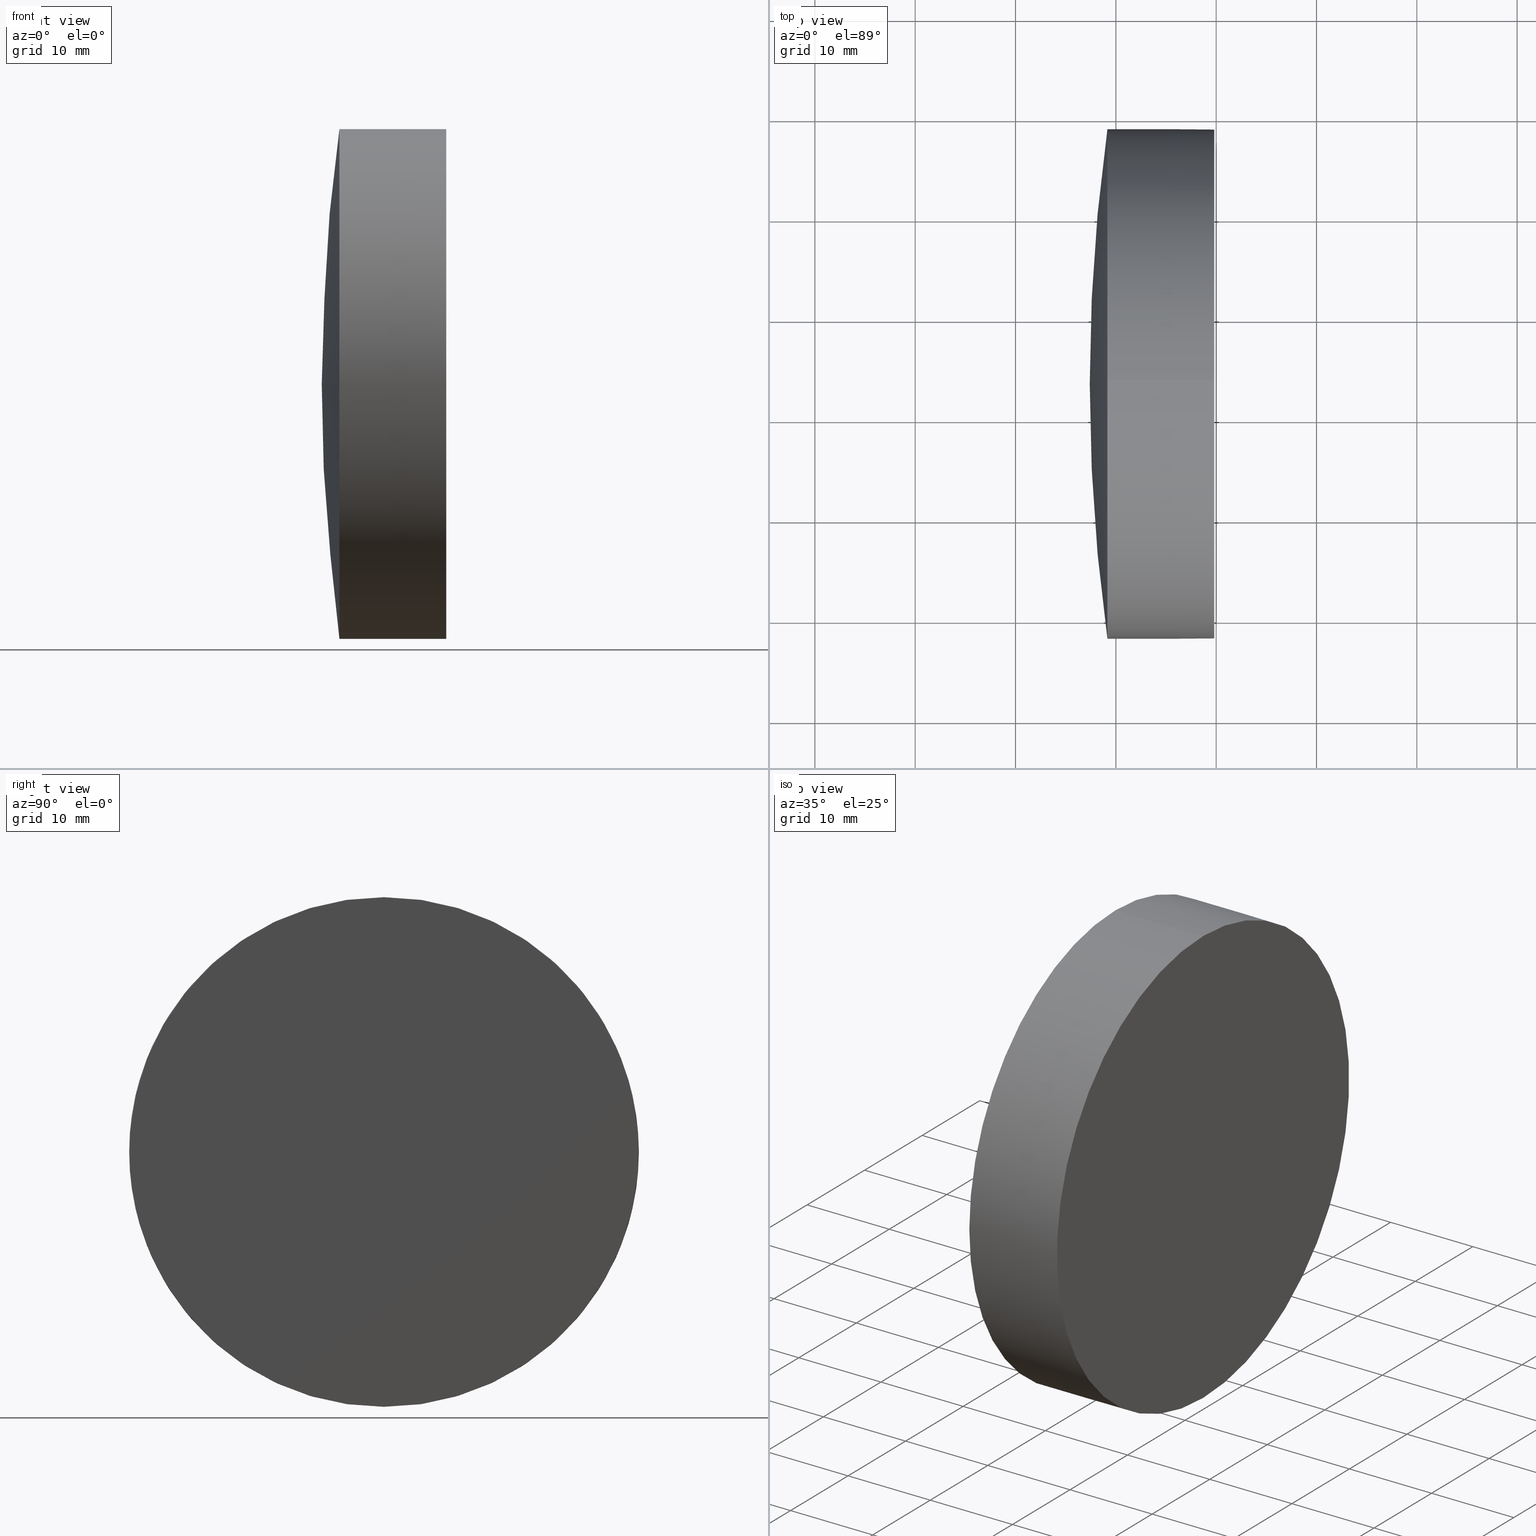
[diagram: canonical four-view strip — front | top / right | iso, engineering-drawing reading convention]
A machine part, canonical four-view strip (front | top / right | iso — engineering-drawing reading convention). The complete STEP part file that produces these views, byte-faithful:
ISO-10303-21;
HEADER;
FILE_DESCRIPTION (( 'STEP AP203' ),
    '1' );
FILE_NAME ('145284.STEP',
    '2024-05-13T01:50:25',
    ( '' ),
    ( '' ),
    'SwSTEP 2.0',
    'SolidWorks 2020',
    '' );
FILE_SCHEMA (( 'CONFIG_CONTROL_DESIGN' ));
ENDSEC;

DATA;
#1 = AXIS2_PLACEMENT_3D ( 'NONE', #90, #149, #264 ) ;
#2 = EDGE_CURVE ( 'NONE', #385, #277, #74, .T. ) ;
#3 = ADVANCED_FACE ( 'NONE', ( #299 ), #123, .T. ) ;
#4 = APPROVAL_PERSON_ORGANIZATION ( #143, #162, #355 ) ;
#5 = SPHERICAL_SURFACE ( 'NONE', #248, 184.2500000000000000 ) ;
#6 = CLOSED_SHELL ( 'NONE', ( #225, #351, #160, #67, #383, #237 ) ) ;
#7 = CIRCLE ( 'NONE', #324, 25.39999999999999858 ) ;
#8 = ADVANCED_FACE ( 'NONE', ( #59 ), #30, .T. ) ;
#9 = DIRECTION ( 'NONE',  ( -1.000000000000000000, -0.000000000000000000, -0.000000000000000000 ) ) ;
#10 = DATE_TIME_ROLE ( 'creation_date' ) ;
#11 = CYLINDRICAL_SURFACE ( 'NONE', #164, 25.39999999999999858 ) ;
#12 = SECURITY_CLASSIFICATION_LEVEL ( 'unclassified' ) ;
#13 = VERTEX_POINT ( 'NONE', #193 ) ;
#14 = CARTESIAN_POINT ( 'NONE',  ( -20.19312051557051291, 13.39555463349441311, 0.000000000000000000 ) ) ;
#15 = CARTESIAN_POINT ( 'NONE',  ( -572.2331205155704765, 13.39555463349441311, 0.000000000000000000 ) ) ;
#16 = DATE_AND_TIME ( #139, #217 ) ;
#17 = DIRECTION ( 'NONE',  ( 0.000000000000000000, 0.000000000000000000, 1.000000000000000000 ) ) ;
#18 = CARTESIAN_POINT ( 'NONE',  ( -572.2331205155704765, 13.39555463349441311, 0.000000000000000000 ) ) ;
#19 = ORIENTED_EDGE ( 'NONE', *, *, #251, .F. ) ;
#20 = ORIENTED_EDGE ( 'NONE', *, *, #197, .T. ) ;
#21 = DIRECTION ( 'NONE',  ( 1.000000000000000000, -0.000000000000000000, -0.000000000000000000 ) ) ;
#22 = VERTEX_POINT ( 'NONE', #224 ) ;
#23 = DIRECTION ( 'NONE',  ( 1.000000000000000000, 0.000000000000000000, 0.000000000000000000 ) ) ;
#24 = DIRECTION ( 'NONE',  ( 0.000000000000000000, 0.000000000000000000, 1.000000000000000000 ) ) ;
#25 = AXIS2_PLACEMENT_3D ( 'NONE', #154, #272, #242 ) ;
#26 = ORIENTED_EDGE ( 'NONE', *, *, #84, .F. ) ;
#27 = COORDINATED_UNIVERSAL_TIME_OFFSET ( 8, 0, .AHEAD. ) ;
#28 = DIRECTION ( 'NONE',  ( 1.000000000000000000, -0.000000000000000000, -0.000000000000000000 ) ) ;
#29 = CIRCLE ( 'NONE', #249, 25.39999999999999858 ) ;
#30 = PLANE ( 'NONE',  #25 ) ;
#31 = ORIENTED_EDGE ( 'NONE', *, *, #191, .F. ) ;
#32 = ORIENTED_EDGE ( 'NONE', *, *, #283, .T. ) ;
#33 = CIRCLE ( 'NONE', #119, 25.39999999999999858 ) ;
#34 = CC_DESIGN_DATE_AND_TIME_ASSIGNMENT ( #142, #10, ( #104 ) ) ;
#35 = CARTESIAN_POINT ( 'NONE',  ( -24.78204361462951866, 13.39555463349441311, 25.39999999999999858 ) ) ;
#36 = ORGANIZATION ( 'δָ��', 'δָ��', '' ) ;
#37 = LOCAL_TIME ( 9, 50, 25.00000000000000000, #255 ) ;
#38 = EDGE_CURVE ( 'NONE', #236, #158, #132, .T. ) ;
#39 = EDGE_CURVE ( 'NONE', #385, #207, #42, .T. ) ;
#40 = DIRECTION ( 'NONE',  ( 0.000000000000000000, 0.000000000000000000, -1.000000000000000000 ) ) ;
#41 = DATE_TIME_ROLE ( 'classification_date' ) ;
#42 = CIRCLE ( 'NONE', #65, 25.39999999999999858 ) ;
#43 = DATE_AND_TIME ( #326, #317 ) ;
#44 = ORIENTED_EDGE ( 'NONE', *, *, #197, .F. ) ;
#45 = EDGE_LOOP ( 'NONE', ( #294, #32, #99, #76 ) ) ;
#46 = PERSON_AND_ORGANIZATION_ROLE ( 'design_supplier' ) ;
#47 = DIRECTION ( 'NONE',  ( 0.000000000000000000, 0.000000000000000000, -1.000000000000000000 ) ) ;
#48 = CARTESIAN_POINT ( 'NONE',  ( -20.19312051557051291, 13.39555463349441311, -25.39999999999999858 ) ) ;
#49 = CARTESIAN_POINT ( 'NONE',  ( -572.2331205155704765, 13.39555463349441311, 0.000000000000000000 ) ) ;
#50 = EDGE_CURVE ( 'NONE', #120, #385, #287, .T. ) ;
#51 = ORIENTED_EDGE ( 'NONE', *, *, #69, .F. ) ;
#52 = ORIENTED_EDGE ( 'NONE', *, *, #130, .T. ) ;
#53 = APPROVAL_ROLE ( '' ) ;
#54 = CARTESIAN_POINT ( 'NONE',  ( -24.78204361462951866, 13.39555463349441666, -25.39999999999999858 ) ) ;
#55 = ORIENTED_EDGE ( 'NONE', *, *, #254, .T. ) ;
#56 = MECHANICAL_CONTEXT ( 'NONE', #250, 'mechanical' ) ;
#57 = DIRECTION ( 'NONE',  ( 0.000000000000000000, 1.000000000000000000, 1.224646799147352961E-16 ) ) ;
#58 = CIRCLE ( 'NONE', #281, 25.39999999999999858 ) ;
#59 = FACE_OUTER_BOUND ( 'NONE', #155, .T. ) ;
#60 = VERTEX_POINT ( 'NONE', #66 ) ;
#61 = ORIENTED_EDGE ( 'NONE', *, *, #296, .F. ) ;
#62 = CC_DESIGN_PERSON_AND_ORGANIZATION_ASSIGNMENT ( #171, #46, ( #316 ) ) ;
#63 = DIRECTION ( 'NONE',  ( 0.000000000000000000, 0.000000000000000000, 1.000000000000000000 ) ) ;
#64 = EDGE_LOOP ( 'NONE', ( #31, #213, #397, #269 ) ) ;
#65 = AXIS2_PLACEMENT_3D ( 'NONE', #280, #102, #279 ) ;
#66 = CARTESIAN_POINT ( 'NONE',  ( -20.19312051557051291, 13.39555463349441666, 25.39999999999999858 ) ) ;
#67 = ADVANCED_FACE ( 'NONE', ( #133 ), #5, .T. ) ;
#68 = DIRECTION ( 'NONE',  ( 1.000000000000000000, -0.000000000000000000, -0.000000000000000000 ) ) ;
#69 = EDGE_CURVE ( 'NONE', #327, #120, #231, .T. ) ;
#70 = DIRECTION ( 'NONE',  ( 0.000000000000000000, 1.000000000000000000, 1.224646799147352961E-16 ) ) ;
#71 = SHAPE_DEFINITION_REPRESENTATION ( #284, #332 ) ;
#72 = MANIFOLD_SOLID_BREP ( '145284a-1-solid1', #6 ) ;
#73 = VERTEX_POINT ( 'NONE', #220 ) ;
#74 = CIRCLE ( 'NONE', #321, 184.2500000000000000 ) ;
#75 = CIRCLE ( 'NONE', #282, 548.0399999999999636 ) ;
#76 = ORIENTED_EDGE ( 'NONE', *, *, #254, .F. ) ;
#77 = PERSON_AND_ORGANIZATION ( #399, #36 ) ;
#78 = APPLICATION_CONTEXT ( 'configuration controlled 3d designs of mechanical parts and assemblies' ) ;
#79 = ORIENTED_EDGE ( 'NONE', *, *, #227, .F. ) ;
#80 = APPROVAL_ROLE ( '' ) ;
#81 = DIRECTION ( 'NONE',  ( 0.000000000000000000, 1.000000000000000000, 0.000000000000000000 ) ) ;
#82 = CIRCLE ( 'NONE', #206, 25.39999999999999858 ) ;
#83 = LINE ( 'NONE', #48, #97 ) ;
#84 = EDGE_CURVE ( 'NONE', #300, #60, #301, .T. ) ;
#85 = DIRECTION ( 'NONE',  ( 1.000000000000000000, -0.000000000000000000, -0.000000000000000000 ) ) ;
#86 =( GEOMETRIC_REPRESENTATION_CONTEXT ( 3 ) GLOBAL_UNCERTAINTY_ASSIGNED_CONTEXT ( ( #229 ) ) GLOBAL_UNIT_ASSIGNED_CONTEXT ( ( #96, #372, #345 ) ) REPRESENTATION_CONTEXT ( 'NONE', 'WORKASPACE' ) );
#87 = EDGE_LOOP ( 'NONE', ( #167, #178, #26, #304, #347 ) ) ;
#88 = DIRECTION ( 'NONE',  ( 0.000000000000000000, 0.000000000000000000, 1.000000000000000000 ) ) ;
#89 = CARTESIAN_POINT ( 'NONE',  ( 151.6477093542552836, 13.39555463349441311, 0.000000000000000000 ) ) ;
#90 = CARTESIAN_POINT ( 'NONE',  ( 0.000000000000000000, 0.000000000000000000, 0.000000000000000000 ) ) ;
#91 = DIRECTION ( 'NONE',  ( 0.000000000000000000, 1.000000000000000000, 0.000000000000000000 ) ) ;
#92 = EDGE_LOOP ( 'NONE', ( #187, #343, #52, #129 ) ) ;
#93 = APPROVAL_DATE_TIME ( #375, #114 ) ;
#94 = LOCAL_TIME ( 9, 50, 25.00000000000000000, #27 ) ;
#95 = APPROVAL_PERSON_ORGANIZATION ( #77, #131, #80 ) ;
#96 =( LENGTH_UNIT ( ) NAMED_UNIT ( * ) SI_UNIT ( .MILLI., .METRE. ) );
#97 = VECTOR ( 'NONE', #174, 1000.000000000000000 ) ;
#98 = CARTESIAN_POINT ( 'NONE',  ( -20.19312051557051291, 13.39555463349441311, 0.000000000000000000 ) ) ;
#99 = ORIENTED_EDGE ( 'NONE', *, *, #38, .F. ) ;
#100 = DIRECTION ( 'NONE',  ( -1.000000000000000000, -0.000000000000000000, -0.000000000000000000 ) ) ;
#101 = VECTOR ( 'NONE', #244, 1000.000000000000000 ) ;
#102 = DIRECTION ( 'NONE',  ( -1.000000000000000000, -0.000000000000000000, -0.000000000000000000 ) ) ;
#103 = AXIS2_PLACEMENT_3D ( 'NONE', #335, #298, #24 ) ;
#104 = PRODUCT_DEFINITION ( 'δ֪', '', #316, #286 ) ;
#105 = LINE ( 'NONE', #226, #260 ) ;
#106 = ORIENTED_EDGE ( 'NONE', *, *, #376, .T. ) ;
#107 = SECURITY_CLASSIFICATION ( '', '', #12 ) ;
#108 = AXIS2_PLACEMENT_3D ( 'NONE', #240, #271, #394 ) ;
#109 = EDGE_LOOP ( 'NONE', ( #177, #106, #124, #61 ) ) ;
#110 = DIRECTION ( 'NONE',  ( 0.000000000000000000, 0.000000000000000000, 1.000000000000000000 ) ) ;
#111 = EDGE_CURVE ( 'NONE', #118, #336, #58, .T. ) ;
#112 = CALENDAR_DATE ( 2024, 13, 5 ) ;
#113 = SPHERICAL_SURFACE ( 'NONE', #252, 548.0399999999999636 ) ;
#114 = APPROVAL ( #337, 'δָ��' ) ;
#115 = PERSON_AND_ORGANIZATION_ROLE ( 'design_owner' ) ;
#116 = CARTESIAN_POINT ( 'NONE',  ( -297.6222906457447266, 13.39555463349441311, 0.000000000000000000 ) ) ;
#117 = AXIS2_PLACEMENT_3D ( 'NONE', #285, #228, #70 ) ;
#118 = VERTEX_POINT ( 'NONE', #35 ) ;
#119 = AXIS2_PLACEMENT_3D ( 'NONE', #386, #21, #391 ) ;
#120 = VERTEX_POINT ( 'NONE', #165 ) ;
#121 = DIRECTION ( 'NONE',  ( 0.000000000000000000, 1.000000000000000000, 0.000000000000000000 ) ) ;
#122 = DIRECTION ( 'NONE',  ( 0.000000000000000000, 0.000000000000000000, -1.000000000000000000 ) ) ;
#123 = CYLINDRICAL_SURFACE ( 'NONE', #201, 25.39999999999999858 ) ;
#124 = ORIENTED_EDGE ( 'NONE', *, *, #111, .F. ) ;
#125 = DIRECTION ( 'NONE',  ( -0.000000000000000000, 0.000000000000000000, 1.000000000000000000 ) ) ;
#126 = CARTESIAN_POINT ( 'NONE',  ( -23.60229064574481583, 13.39555463349443087, 0.000000000000000000 ) ) ;
#127 = LOCAL_TIME ( 9, 50, 25.00000000000000000, #291 ) ;
#128 = DIRECTION ( 'NONE',  ( 0.000000000000000000, 1.000000000000000000, 0.000000000000000000 ) ) ;
#129 = ORIENTED_EDGE ( 'NONE', *, *, #2, .F. ) ;
#130 = EDGE_CURVE ( 'NONE', #327, #277, #169, .T. ) ;
#131 = APPROVAL ( #208, 'δָ��' ) ;
#132 = CIRCLE ( 'NONE', #392, 25.39999999999999858 ) ;
#133 = FACE_OUTER_BOUND ( 'NONE', #172, .T. ) ;
#134 = AXIS2_PLACEMENT_3D ( 'NONE', #356, #68, #40 ) ;
#135 = PRODUCT ( '145284', '145284', '', ( #56 ) ) ;
#136 = AXIS2_PLACEMENT_3D ( 'NONE', #184, #153, #17 ) ;
#137 = FACE_OUTER_BOUND ( 'NONE', #92, .T. ) ;
#138 = CARTESIAN_POINT ( 'NONE',  ( -24.78204361462953287, -12.00444536650550731, -3.110602869834267399E-15 ) ) ;
#139 = CALENDAR_DATE ( 2024, 13, 5 ) ;
#140 = EDGE_LOOP ( 'NONE', ( #389, #357, #239, #393, #51, #371 ) ) ;
#141 = DIRECTION ( 'NONE',  ( 1.000000000000000000, -0.000000000000000000, -0.000000000000000000 ) ) ;
#142 = DATE_AND_TIME ( #366, #127 ) ;
#143 = PERSON_AND_ORGANIZATION ( #399, #36 ) ;
#144 = CYLINDRICAL_SURFACE ( 'NONE', #108, 25.39999999999999858 ) ;
#145 = EDGE_CURVE ( 'NONE', #159, #308, #222, .T. ) ;
#146 = DIRECTION ( 'NONE',  ( 0.000000000000000000, 1.224646799147353207E-16, 1.000000000000000000 ) ) ;
#147 = COORDINATED_UNIVERSAL_TIME_OFFSET ( 8, 0, .AHEAD. ) ;
#148 = EDGE_CURVE ( 'NONE', #236, #207, #166, .T. ) ;
#149 = DIRECTION ( 'NONE',  ( 0.000000000000000000, 0.000000000000000000, 1.000000000000000000 ) ) ;
#150 = CARTESIAN_POINT ( 'NONE',  ( -30.84311918241391837, -12.00444536650557303, -3.110602869834275682E-15 ) ) ;
#151 = APPLICATION_PROTOCOL_DEFINITION ( 'international standard', 'config_control_design', 1994, #78 ) ;
#152 = ORIENTED_EDGE ( 'NONE', *, *, #227, .T. ) ;
#153 = DIRECTION ( 'NONE',  ( -1.000000000000000000, -0.000000000000000000, -0.000000000000000000 ) ) ;
#154 = CARTESIAN_POINT ( 'NONE',  ( -20.19312051557051291, 38.79555463349441169, 0.000000000000000000 ) ) ;
#155 = EDGE_LOOP ( 'NONE', ( #307, #20 ) ) ;
#156 = DIRECTION ( 'NONE',  ( 0.000000000000000000, 0.000000000000000000, -1.000000000000000000 ) ) ;
#157 = AXIS2_PLACEMENT_3D ( 'NONE', #49, #303, #91 ) ;
#158 = VERTEX_POINT ( 'NONE', #138 ) ;
#159 = VERTEX_POINT ( 'NONE', #256 ) ;
#160 = ADVANCED_FACE ( 'NONE', ( #137 ), #198, .T. ) ;
#161 = DIRECTION ( 'NONE',  ( 1.000000000000000000, -0.000000000000000000, -0.000000000000000000 ) ) ;
#162 = APPROVAL ( #290, 'δָ��' ) ;
#163 = CARTESIAN_POINT ( 'NONE',  ( -24.78204361462951866, 13.39555463349441311, 0.000000000000000000 ) ) ;
#164 = AXIS2_PLACEMENT_3D ( 'NONE', #14, #141, #358 ) ;
#165 = CARTESIAN_POINT ( 'NONE',  ( -30.84311918241391837, 13.39555463349441311, 25.39999999999999858 ) ) ;
#166 = LINE ( 'NONE', #196, #360 ) ;
#167 = ORIENTED_EDGE ( 'NONE', *, *, #329, .T. ) ;
#168 = CC_DESIGN_DATE_AND_TIME_ASSIGNMENT ( #199, #41, ( #107 ) ) ;
#169 = CIRCLE ( 'NONE', #117, 184.2500000000000284 ) ;
#170 = ORIENTED_EDGE ( 'NONE', *, *, #2, .T. ) ;
#171 = PERSON_AND_ORGANIZATION ( #399, #36 ) ;
#172 = EDGE_LOOP ( 'NONE', ( #322, #400, #262, #170 ) ) ;
#173 = EDGE_CURVE ( 'NONE', #118, #120, #105, .T. ) ;
#174 = DIRECTION ( 'NONE',  ( 1.000000000000000000, -0.000000000000000000, -0.000000000000000000 ) ) ;
#175 = ORIENTED_EDGE ( 'NONE', *, *, #173, .F. ) ;
#176 = CARTESIAN_POINT ( 'NONE',  ( -24.78204361462951866, 13.39555463349441311, 0.000000000000000000 ) ) ;
#177 = ORIENTED_EDGE ( 'NONE', *, *, #283, .F. ) ;
#178 = ORIENTED_EDGE ( 'NONE', *, *, #365, .T. ) ;
#179 = CARTESIAN_POINT ( 'NONE',  ( -297.6222906457447266, 13.39555463349441311, 0.000000000000000000 ) ) ;
#180 = DIRECTION ( 'NONE',  ( -1.000000000000000000, -0.000000000000000000, -0.000000000000000000 ) ) ;
#181 = ORIENTED_EDGE ( 'NONE', *, *, #191, .T. ) ;
#182 = ORIENTED_EDGE ( 'NONE', *, *, #111, .T. ) ;
#183 = PERSON_AND_ORGANIZATION ( #399, #36 ) ;
#184 = CARTESIAN_POINT ( 'NONE',  ( -30.84311918241391837, 13.39555463349441311, 0.000000000000000000 ) ) ;
#185 = ORIENTED_EDGE ( 'NONE', *, *, #245, .F. ) ;
#186 = DIRECTION ( 'NONE',  ( 0.000000000000000000, -1.000000000000000000, 1.224646799147352961E-16 ) ) ;
#187 = ORIENTED_EDGE ( 'NONE', *, *, #39, .T. ) ;
#188 = FACE_OUTER_BOUND ( 'NONE', #331, .T. ) ;
#189 = EDGE_CURVE ( 'NONE', #22, #300, #83, .T. ) ;
#190 = CARTESIAN_POINT ( 'NONE',  ( 151.6477093542552836, 13.39555463349441311, 0.000000000000000000 ) ) ;
#191 = EDGE_CURVE ( 'NONE', #308, #73, #203, .T. ) ;
#192 = DIRECTION ( 'NONE',  ( -1.000000000000000000, -0.000000000000000000, -0.000000000000000000 ) ) ;
#193 = CARTESIAN_POINT ( 'NONE',  ( -24.78204361462947602, 38.79555463349419853, 0.000000000000000000 ) ) ;
#194 = APPROVAL_PERSON_ORGANIZATION ( #183, #114, #53 ) ;
#195 = CC_DESIGN_APPROVAL ( #131, ( #107 ) ) ;
#196 = CARTESIAN_POINT ( 'NONE',  ( -32.60229064574473057, 13.39555463349441666, -25.39999999999999858 ) ) ;
#197 = EDGE_CURVE ( 'NONE', #60, #300, #7, .T. ) ;
#198 = SPHERICAL_SURFACE ( 'NONE', #318, 184.2500000000000000 ) ;
#199 = DATE_AND_TIME ( #112, #37 ) ;
#200 = EDGE_LOOP ( 'NONE', ( #79, #181, #185, #19 ) ) ;
#201 = AXIS2_PLACEMENT_3D ( 'NONE', #374, #241, #342 ) ;
#202 = PERSON_AND_ORGANIZATION_ROLE ( 'creator' ) ;
#203 = CIRCLE ( 'NONE', #232, 548.0399999999999636 ) ;
#204 = APPROVAL_DATE_TIME ( #16, #162 ) ;
#205 = CARTESIAN_POINT ( 'NONE',  ( -24.78204361462953287, 38.79555463349433353, 0.000000000000000000 ) ) ;
#206 = AXIS2_PLACEMENT_3D ( 'NONE', #176, #398, #110 ) ;
#207 = VERTEX_POINT ( 'NONE', #243 ) ;
#208 = APPROVAL_STATUS ( 'not_yet_approved' ) ;
#209 = CARTESIAN_POINT ( 'NONE',  ( -24.78204361462951866, 13.39555463349441311, 0.000000000000000000 ) ) ;
#210 = AXIS2_PLACEMENT_3D ( 'NONE', #179, #125, #23 ) ;
#211 = DIRECTION ( 'NONE',  ( -1.000000000000000000, 0.000000000000000000, 0.000000000000000000 ) ) ;
#212 = DIRECTION ( 'NONE',  ( -0.000000000000000000, 0.000000000000000000, 1.000000000000000000 ) ) ;
#213 = ORIENTED_EDGE ( 'NONE', *, *, #145, .F. ) ;
#214 = FACE_OUTER_BOUND ( 'NONE', #109, .T. ) ;
#215 = DIRECTION ( 'NONE',  ( 0.000000000000000000, 1.224646799147353207E-16, -1.000000000000000000 ) ) ;
#216 = DIRECTION ( 'NONE',  ( -0.000000000000000000, 0.000000000000000000, -1.000000000000000000 ) ) ;
#217 = LOCAL_TIME ( 9, 50, 25.00000000000000000, #320 ) ;
#218 = AXIS2_PLACEMENT_3D ( 'NONE', #373, #85, #265 ) ;
#219 = MANIFOLD_SOLID_BREP ( '145284b-1-solid1', #352 ) ;
#220 = CARTESIAN_POINT ( 'NONE',  ( -24.19312051557054133, 13.39555463349444686, 0.000000000000000000 ) ) ;
#221 = ADVANCED_FACE ( 'NONE', ( #188 ), #11, .T. ) ;
#222 = CIRCLE ( 'NONE', #134, 25.39999999999999858 ) ;
#223 = CIRCLE ( 'NONE', #210, 274.0199999999999250 ) ;
#224 = CARTESIAN_POINT ( 'NONE',  ( -24.78204361462951866, 13.39555463349441311, -25.39999999999999858 ) ) ;
#225 = ADVANCED_FACE ( 'NONE', ( #315 ), #367, .T. ) ;
#226 = CARTESIAN_POINT ( 'NONE',  ( -32.60229064574473057, 13.39555463349441311, 25.39999999999999858 ) ) ;
#227 = EDGE_CURVE ( 'NONE', #308, #22, #29, .T. ) ;
#228 = DIRECTION ( 'NONE',  ( 0.000000000000000000, 1.224646799147353207E-16, -1.000000000000000000 ) ) ;
#229 = UNCERTAINTY_MEASURE_WITH_UNIT (LENGTH_MEASURE( 1.000000000000000082E-05 ), #96, 'distance_accuracy_value', 'NONE');
#230 = PERSON_AND_ORGANIZATION ( #399, #36 ) ;
#231 = CIRCLE ( 'NONE', #266, 25.39999999999999858 ) ;
#232 = AXIS2_PLACEMENT_3D ( 'NONE', #18, #146, #186 ) ;
#233 = PERSON_AND_ORGANIZATION_ROLE ( 'creator' ) ;
#234 = DIRECTION ( 'NONE',  ( 0.000000000000000000, -0.000000000000000000, 1.000000000000000000 ) ) ;
#235 = SPHERICAL_SURFACE ( 'NONE', #395, 274.0199999999999250 ) ;
#236 = VERTEX_POINT ( 'NONE', #54 ) ;
#237 = ADVANCED_FACE ( 'NONE', ( #341 ), #144, .T. ) ;
#238 = CARTESIAN_POINT ( 'NONE',  ( -20.19312051557051291, 13.39555463349441311, -25.39999999999999858 ) ) ;
#239 = ORIENTED_EDGE ( 'NONE', *, *, #296, .T. ) ;
#240 = CARTESIAN_POINT ( 'NONE',  ( -32.60229064574473057, 13.39555463349441311, 0.000000000000000000 ) ) ;
#241 = DIRECTION ( 'NONE',  ( 1.000000000000000000, -0.000000000000000000, -0.000000000000000000 ) ) ;
#242 = DIRECTION ( 'NONE',  ( -0.000000000000000000, 0.000000000000000000, -1.000000000000000000 ) ) ;
#243 = CARTESIAN_POINT ( 'NONE',  ( -30.84311918241391837, 13.39555463349441666, -25.39999999999999858 ) ) ;
#244 = DIRECTION ( 'NONE',  ( 1.000000000000000000, -0.000000000000000000, -0.000000000000000000 ) ) ;
#245 = EDGE_CURVE ( 'NONE', #13, #73, #75, .T. ) ;
#246 = CARTESIAN_POINT ( 'NONE',  ( -30.84311918241391837, 13.39555463349441311, 0.000000000000000000 ) ) ;
#247 = DIRECTION ( 'NONE',  ( -0.000000000000000000, 0.000000000000000000, -1.000000000000000000 ) ) ;
#248 = AXIS2_PLACEMENT_3D ( 'NONE', #190, #247, #128 ) ;
#249 = AXIS2_PLACEMENT_3D ( 'NONE', #209, #28, #47 ) ;
#250 = APPLICATION_CONTEXT ( 'configuration controlled 3d designs of mechanical parts and assemblies' ) ;
#251 = EDGE_CURVE ( 'NONE', #22, #13, #346, .T. ) ;
#252 = AXIS2_PLACEMENT_3D ( 'NONE', #292, #234, #81 ) ;
#253 = DIRECTION ( 'NONE',  ( -0.000000000000000000, 0.000000000000000000, -1.000000000000000000 ) ) ;
#254 = EDGE_CURVE ( 'NONE', #336, #236, #328, .T. ) ;
#255 = COORDINATED_UNIVERSAL_TIME_OFFSET ( 8, 0, .AHEAD. ) ;
#256 = CARTESIAN_POINT ( 'NONE',  ( -24.78204361462951866, 13.39555463349441666, 25.39999999999999858 ) ) ;
#257 = ORIENTED_EDGE ( 'NONE', *, *, #148, .T. ) ;
#258 = CC_DESIGN_APPROVAL ( #162, ( #316 ) ) ;
#259 = CARTESIAN_POINT ( 'NONE',  ( -24.78204361462947602, -12.00444536650537053, 3.110602869834250833E-15 ) ) ;
#260 = VECTOR ( 'NONE', #363, 1000.000000000000000 ) ;
#261 = ADVANCED_FACE ( 'NONE', ( #362 ), #388, .F. ) ;
#262 = ORIENTED_EDGE ( 'NONE', *, *, #50, .T. ) ;
#263 = ORIENTED_EDGE ( 'NONE', *, *, #189, .T. ) ;
#264 = DIRECTION ( 'NONE',  ( 1.000000000000000000, 0.000000000000000000, 0.000000000000000000 ) ) ;
#265 = DIRECTION ( 'NONE',  ( 0.000000000000000000, 0.000000000000000000, -1.000000000000000000 ) ) ;
#266 = AXIS2_PLACEMENT_3D ( 'NONE', #246, #310, #313 ) ;
#267 = LINE ( 'NONE', #274, #101 ) ;
#268 = CARTESIAN_POINT ( 'NONE',  ( -32.60229064574471636, 13.39555463349442554, 0.000000000000000000 ) ) ;
#269 = ORIENTED_EDGE ( 'NONE', *, *, #245, .T. ) ;
#270 = CALENDAR_DATE ( 2024, 13, 5 ) ;
#271 = DIRECTION ( 'NONE',  ( -1.000000000000000000, -0.000000000000000000, -0.000000000000000000 ) ) ;
#272 = DIRECTION ( 'NONE',  ( 1.000000000000000000, 0.000000000000000000, -0.000000000000000000 ) ) ;
#273 = ORIENTED_EDGE ( 'NONE', *, *, #50, .F. ) ;
#274 = CARTESIAN_POINT ( 'NONE',  ( -20.19312051557051291, 13.39555463349441666, 25.39999999999999858 ) ) ;
#275 = AXIS2_PLACEMENT_3D ( 'NONE', #116, #215, #57 ) ;
#276 = CARTESIAN_POINT ( 'NONE',  ( -24.78204361462951866, 13.39555463349441311, 0.000000000000000000 ) ) ;
#277 = VERTEX_POINT ( 'NONE', #268 ) ;
#278 = DIRECTION ( 'NONE',  ( 0.000000000000000000, 0.000000000000000000, -1.000000000000000000 ) ) ;
#279 = DIRECTION ( 'NONE',  ( 0.000000000000000000, 0.000000000000000000, 1.000000000000000000 ) ) ;
#280 = CARTESIAN_POINT ( 'NONE',  ( -30.84311918241391837, 13.39555463349441311, 0.000000000000000000 ) ) ;
#281 = AXIS2_PLACEMENT_3D ( 'NONE', #276, #349, #63 ) ;
#282 = AXIS2_PLACEMENT_3D ( 'NONE', #15, #122, #211 ) ;
#283 = EDGE_CURVE ( 'NONE', #368, #158, #309, .T. ) ;
#284 = PRODUCT_DEFINITION_SHAPE ( 'NONE', 'NONE',  #104 ) ;
#285 = CARTESIAN_POINT ( 'NONE',  ( 151.6477093542552836, 13.39555463349441311, 0.000000000000000000 ) ) ;
#286 = DESIGN_CONTEXT ( 'detailed design', #78, 'design' ) ;
#287 = CIRCLE ( 'NONE', #379, 25.39999999999999858 ) ;
#288 = CARTESIAN_POINT ( 'NONE',  ( 151.6477093542552836, 13.39555463349441311, 0.000000000000000000 ) ) ;
#289 = ORIENTED_EDGE ( 'NONE', *, *, #145, .T. ) ;
#290 = APPROVAL_STATUS ( 'not_yet_approved' ) ;
#291 = COORDINATED_UNIVERSAL_TIME_OFFSET ( 8, 0, .AHEAD. ) ;
#292 = CARTESIAN_POINT ( 'NONE',  ( -572.2331205155704765, 13.39555463349441311, 0.000000000000000000 ) ) ;
#293 = EDGE_CURVE ( 'NONE', #207, #327, #381, .T. ) ;
#294 = ORIENTED_EDGE ( 'NONE', *, *, #376, .F. ) ;
#295 = FACE_OUTER_BOUND ( 'NONE', #200, .T. ) ;
#296 = EDGE_CURVE ( 'NONE', #158, #118, #82, .T. ) ;
#297 = DIRECTION ( 'NONE',  ( 0.000000000000000000, 1.000000000000000000, 0.000000000000000000 ) ) ;
#298 = DIRECTION ( 'NONE',  ( -1.000000000000000000, -0.000000000000000000, -0.000000000000000000 ) ) ;
#299 = FACE_OUTER_BOUND ( 'NONE', #87, .T. ) ;
#300 = VERTEX_POINT ( 'NONE', #238 ) ;
#301 = CIRCLE ( 'NONE', #359, 25.39999999999999858 ) ;
#302 = CARTESIAN_POINT ( 'NONE',  ( -297.6222906457447266, 13.39555463349441311, 0.000000000000000000 ) ) ;
#303 = DIRECTION ( 'NONE',  ( 0.000000000000000000, -0.000000000000000000, 1.000000000000000000 ) ) ;
#304 = ORIENTED_EDGE ( 'NONE', *, *, #189, .F. ) ;
#305 = CARTESIAN_POINT ( 'NONE',  ( -20.19312051557051291, 13.39555463349441311, 0.000000000000000000 ) ) ;
#306 = SPHERICAL_SURFACE ( 'NONE', #323, 274.0199999999999250 ) ;
#307 = ORIENTED_EDGE ( 'NONE', *, *, #84, .T. ) ;
#308 = VERTEX_POINT ( 'NONE', #259 ) ;
#309 = CIRCLE ( 'NONE', #275, 274.0199999999999250 ) ;
#310 = DIRECTION ( 'NONE',  ( -1.000000000000000000, -0.000000000000000000, -0.000000000000000000 ) ) ;
#311 = ADVANCED_FACE ( 'NONE', ( #295 ), #113, .F. ) ;
#312 = PRODUCT_RELATED_PRODUCT_CATEGORY ( 'detail', '', ( #135 ) ) ;
#313 = DIRECTION ( 'NONE',  ( 0.000000000000000000, 0.000000000000000000, 1.000000000000000000 ) ) ;
#314 = DIRECTION ( 'NONE',  ( 0.000000000000000000, 0.000000000000000000, 1.000000000000000000 ) ) ;
#315 = FACE_OUTER_BOUND ( 'NONE', #350, .T. ) ;
#316 = PRODUCT_DEFINITION_FORMATION_WITH_SPECIFIED_SOURCE ( '�κ�', '', #135, .NOT_KNOWN. ) ;
#317 = LOCAL_TIME ( 9, 50, 25.00000000000000000, #147 ) ;
#318 = AXIS2_PLACEMENT_3D ( 'NONE', #288, #253, #382 ) ;
#319 = CC_DESIGN_PERSON_AND_ORGANIZATION_ASSIGNMENT ( #361, #202, ( #104 ) ) ;
#320 = COORDINATED_UNIVERSAL_TIME_OFFSET ( 8, 0, .AHEAD. ) ;
#321 = AXIS2_PLACEMENT_3D ( 'NONE', #89, #212, #339 ) ;
#322 = ORIENTED_EDGE ( 'NONE', *, *, #130, .F. ) ;
#323 = AXIS2_PLACEMENT_3D ( 'NONE', #302, #216, #121 ) ;
#324 = AXIS2_PLACEMENT_3D ( 'NONE', #305, #348, #156 ) ;
#325 = PERSON_AND_ORGANIZATION ( #399, #36 ) ;
#326 = CALENDAR_DATE ( 2024, 13, 5 ) ;
#327 = VERTEX_POINT ( 'NONE', #150 ) ;
#328 = CIRCLE ( 'NONE', #103, 25.39999999999999858 ) ;
#329 = EDGE_CURVE ( 'NONE', #13, #159, #33, .T. ) ;
#330 = FACE_OUTER_BOUND ( 'NONE', #45, .T. ) ;
#331 = EDGE_LOOP ( 'NONE', ( #364, #289, #152, #263, #44 ) ) ;
#332 = ADVANCED_BREP_SHAPE_REPRESENTATION ( '145284', ( #219, #72, #1 ), #86 ) ;
#333 = APPROVAL_DATE_TIME ( #43, #131 ) ;
#334 = CC_DESIGN_PERSON_AND_ORGANIZATION_ASSIGNMENT ( #390, #115, ( #135 ) ) ;
#335 = CARTESIAN_POINT ( 'NONE',  ( -24.78204361462951866, 13.39555463349441311, 0.000000000000000000 ) ) ;
#336 = VERTEX_POINT ( 'NONE', #205 ) ;
#337 = APPROVAL_STATUS ( 'not_yet_approved' ) ;
#338 = CARTESIAN_POINT ( 'NONE',  ( -32.60229064574473057, 13.39555463349441311, 0.000000000000000000 ) ) ;
#339 = DIRECTION ( 'NONE',  ( 1.000000000000000000, 0.000000000000000000, 0.000000000000000000 ) ) ;
#340 = APPLICATION_PROTOCOL_DEFINITION ( 'international standard', 'config_control_design', 1994, #250 ) ;
#341 = FACE_OUTER_BOUND ( 'NONE', #140, .T. ) ;
#342 = DIRECTION ( 'NONE',  ( 0.000000000000000000, 0.000000000000000000, -1.000000000000000000 ) ) ;
#343 = ORIENTED_EDGE ( 'NONE', *, *, #293, .T. ) ;
#344 = CC_DESIGN_SECURITY_CLASSIFICATION ( #107, ( #316 ) ) ;
#345 =( NAMED_UNIT ( * ) SI_UNIT ( $, .STERADIAN. ) SOLID_ANGLE_UNIT ( ) );
#346 = CIRCLE ( 'NONE', #218, 25.39999999999999858 ) ;
#347 = ORIENTED_EDGE ( 'NONE', *, *, #251, .T. ) ;
#348 = DIRECTION ( 'NONE',  ( 1.000000000000000000, -0.000000000000000000, -0.000000000000000000 ) ) ;
#349 = DIRECTION ( 'NONE',  ( -1.000000000000000000, -0.000000000000000000, -0.000000000000000000 ) ) ;
#350 = EDGE_LOOP ( 'NONE', ( #55, #257, #396, #273, #175, #182 ) ) ;
#351 = ADVANCED_FACE ( 'NONE', ( #330 ), #235, .T. ) ;
#352 = CLOSED_SHELL ( 'NONE', ( #3, #311, #261, #221, #8 ) ) ;
#353 = DIRECTION ( 'NONE',  ( 0.000000000000000000, 0.000000000000000000, 1.000000000000000000 ) ) ;
#354 = CC_DESIGN_APPROVAL ( #114, ( #104 ) ) ;
#355 = APPROVAL_ROLE ( '' ) ;
#356 = CARTESIAN_POINT ( 'NONE',  ( -24.78204361462951866, 13.39555463349441311, 0.000000000000000000 ) ) ;
#357 = ORIENTED_EDGE ( 'NONE', *, *, #38, .T. ) ;
#358 = DIRECTION ( 'NONE',  ( 0.000000000000000000, 0.000000000000000000, -1.000000000000000000 ) ) ;
#359 = AXIS2_PLACEMENT_3D ( 'NONE', #98, #161, #278 ) ;
#360 = VECTOR ( 'NONE', #9, 1000.000000000000000 ) ;
#361 = PERSON_AND_ORGANIZATION ( #399, #36 ) ;
#362 = FACE_OUTER_BOUND ( 'NONE', #64, .T. ) ;
#363 = DIRECTION ( 'NONE',  ( -1.000000000000000000, -0.000000000000000000, -0.000000000000000000 ) ) ;
#364 = ORIENTED_EDGE ( 'NONE', *, *, #365, .F. ) ;
#365 = EDGE_CURVE ( 'NONE', #159, #60, #267, .T. ) ;
#366 = CALENDAR_DATE ( 2024, 13, 5 ) ;
#367 = CYLINDRICAL_SURFACE ( 'NONE', #380, 25.39999999999999858 ) ;
#368 = VERTEX_POINT ( 'NONE', #126 ) ;
#369 = CARTESIAN_POINT ( 'NONE',  ( -297.6222906457447266, 13.39555463349441311, 0.000000000000000000 ) ) ;
#370 = DIRECTION ( 'NONE',  ( -0.000000000000000000, 0.000000000000000000, -1.000000000000000000 ) ) ;
#371 = ORIENTED_EDGE ( 'NONE', *, *, #293, .F. ) ;
#372 =( NAMED_UNIT ( * ) PLANE_ANGLE_UNIT ( ) SI_UNIT ( $, .RADIAN. ) );
#373 = CARTESIAN_POINT ( 'NONE',  ( -24.78204361462951866, 13.39555463349441311, 0.000000000000000000 ) ) ;
#374 = CARTESIAN_POINT ( 'NONE',  ( -20.19312051557051291, 13.39555463349441311, 0.000000000000000000 ) ) ;
#375 = DATE_AND_TIME ( #270, #94 ) ;
#376 = EDGE_CURVE ( 'NONE', #368, #336, #223, .T. ) ;
#377 = CC_DESIGN_PERSON_AND_ORGANIZATION_ASSIGNMENT ( #325, #233, ( #316 ) ) ;
#378 = CARTESIAN_POINT ( 'NONE',  ( -30.84311918241391837, 13.39555463349441311, 0.000000000000000000 ) ) ;
#379 = AXIS2_PLACEMENT_3D ( 'NONE', #378, #100, #353 ) ;
#380 = AXIS2_PLACEMENT_3D ( 'NONE', #338, #180, #88 ) ;
#381 = CIRCLE ( 'NONE', #136, 25.39999999999999858 ) ;
#382 = DIRECTION ( 'NONE',  ( 0.000000000000000000, 1.000000000000000000, 0.000000000000000000 ) ) ;
#383 = ADVANCED_FACE ( 'NONE', ( #214 ), #306, .T. ) ;
#384 = PERSON_AND_ORGANIZATION_ROLE ( 'classification_officer' ) ;
#385 = VERTEX_POINT ( 'NONE', #401 ) ;
#386 = CARTESIAN_POINT ( 'NONE',  ( -24.78204361462951866, 13.39555463349441311, 0.000000000000000000 ) ) ;
#387 = CC_DESIGN_PERSON_AND_ORGANIZATION_ASSIGNMENT ( #230, #384, ( #107 ) ) ;
#388 = SPHERICAL_SURFACE ( 'NONE', #157, 548.0399999999999636 ) ;
#389 = ORIENTED_EDGE ( 'NONE', *, *, #148, .F. ) ;
#390 = PERSON_AND_ORGANIZATION ( #399, #36 ) ;
#391 = DIRECTION ( 'NONE',  ( 0.000000000000000000, 0.000000000000000000, -1.000000000000000000 ) ) ;
#392 = AXIS2_PLACEMENT_3D ( 'NONE', #163, #192, #314 ) ;
#393 = ORIENTED_EDGE ( 'NONE', *, *, #173, .T. ) ;
#394 = DIRECTION ( 'NONE',  ( 0.000000000000000000, 0.000000000000000000, 1.000000000000000000 ) ) ;
#395 = AXIS2_PLACEMENT_3D ( 'NONE', #369, #370, #297 ) ;
#396 = ORIENTED_EDGE ( 'NONE', *, *, #39, .F. ) ;
#397 = ORIENTED_EDGE ( 'NONE', *, *, #329, .F. ) ;
#398 = DIRECTION ( 'NONE',  ( -1.000000000000000000, -0.000000000000000000, -0.000000000000000000 ) ) ;
#399 = PERSON ( 'δָ��', 'δָ��', 'δָ��', ('δָ��'), ('δָ��'), ('δָ��') ) ;
#400 = ORIENTED_EDGE ( 'NONE', *, *, #69, .T. ) ;
#401 = CARTESIAN_POINT ( 'NONE',  ( -30.84311918241391837, 38.79555463349440458, 0.000000000000000000 ) ) ;
ENDSEC;
END-ISO-10303-21;
